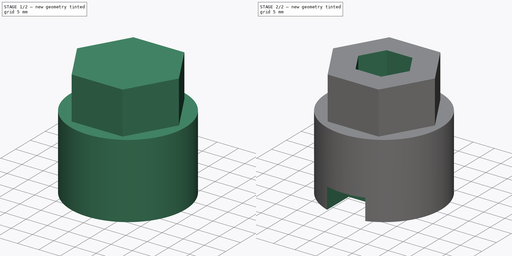
[diagram: build sequence overview — one tinted view per stage of 2, left to right]
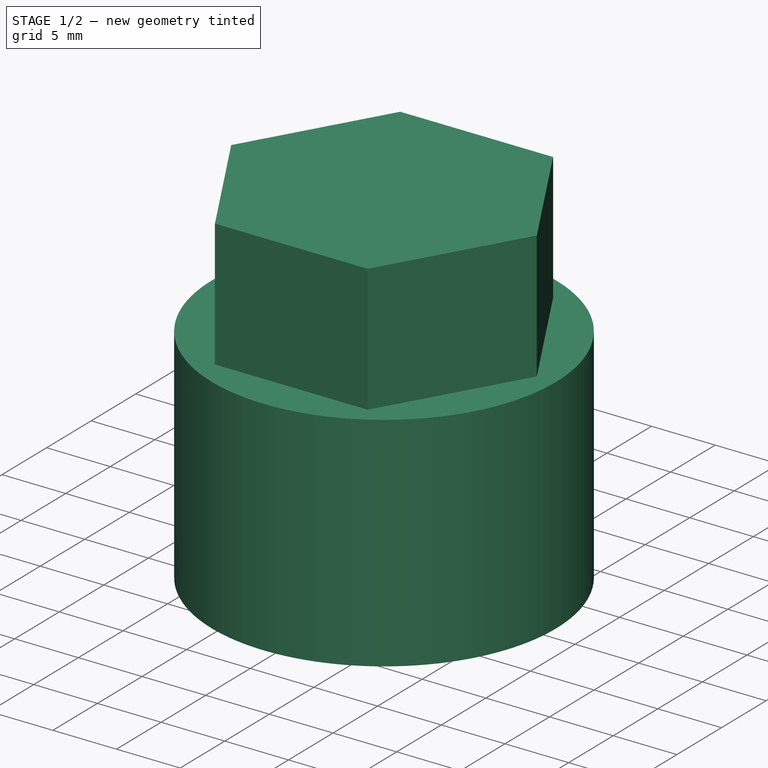
[diagram: stage 1 of 2 — iso view after this stage's code; geometry added in this stage tinted green]
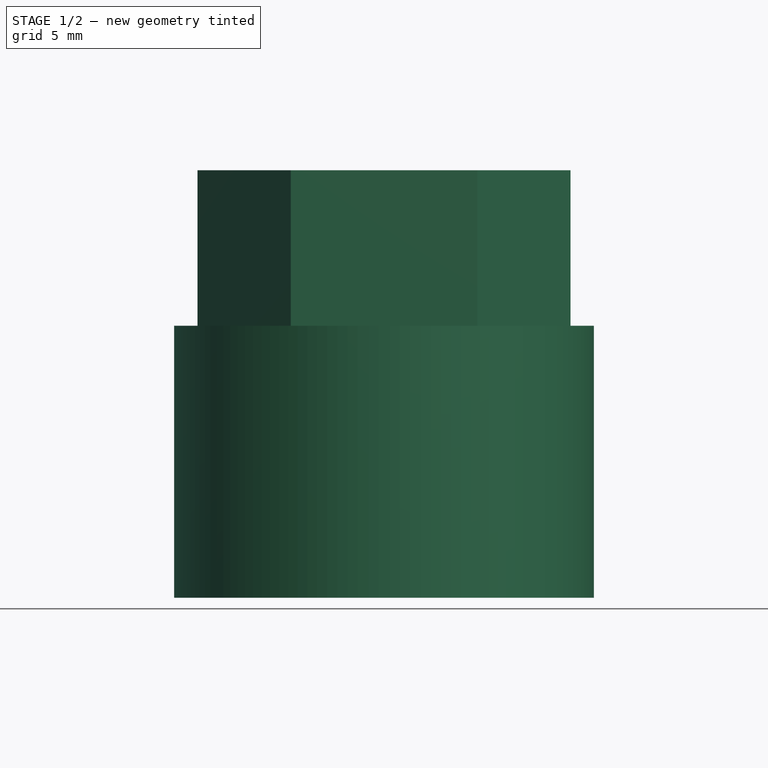
[diagram: stage 1 of 2 — front view after this stage's code; geometry added in this stage tinted green]
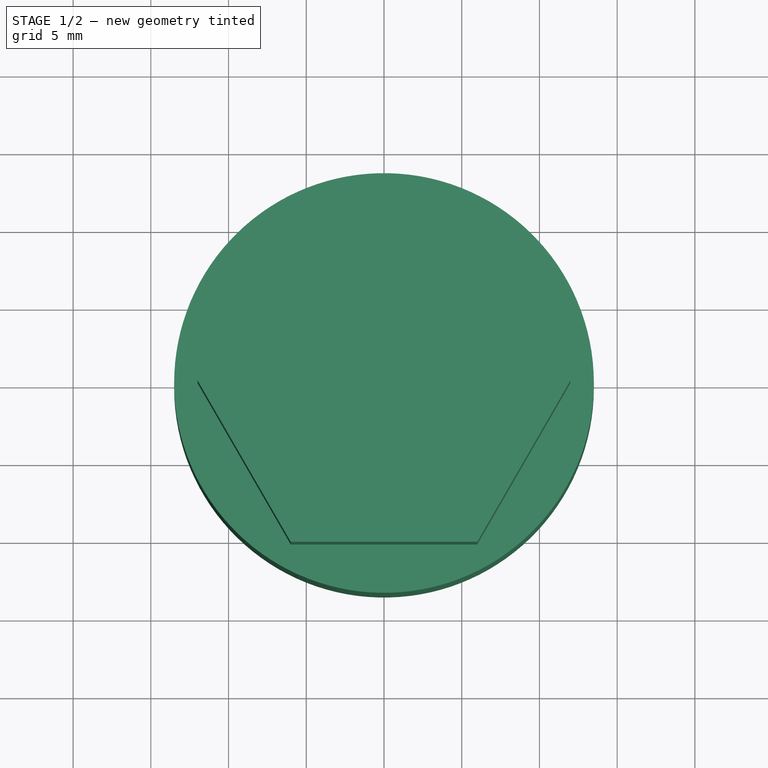
[diagram: stage 1 of 2 — top view after this stage's code; geometry added in this stage tinted green]
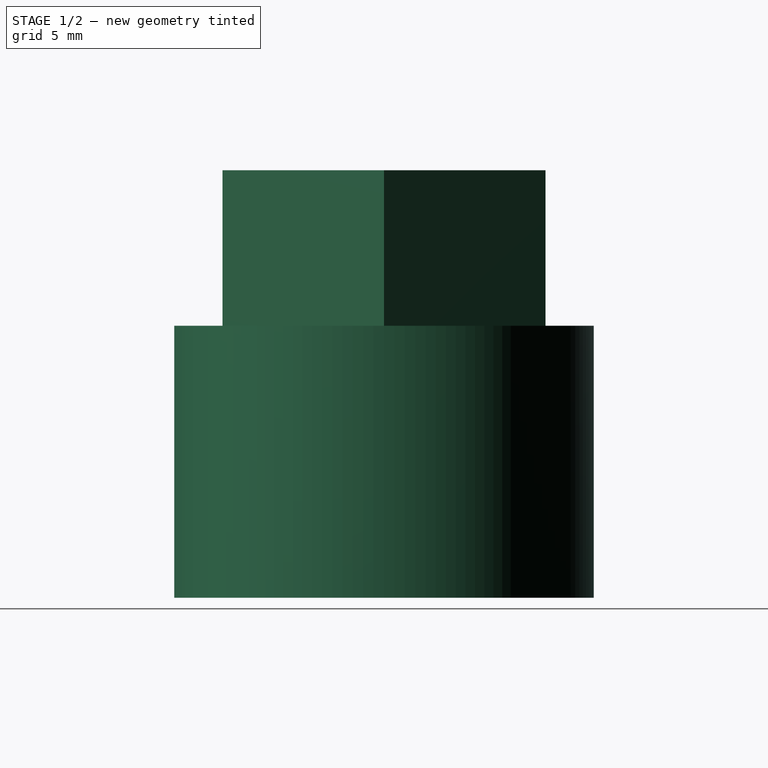
[diagram: stage 1 of 2 — right view after this stage's code; geometry added in this stage tinted green]
FCSTD DOCUMENT  (FreeCAD 1.0R39319 (Git))
Label: Vacume Coupler
License: All rights reserved
LicenseURL: https://en.wikipedia.org/wiki/All_rights_reserved
objects: Sketcher::SketchObject×4, PartDesign::Pad×2, PartDesign::Pocket×2, PartDesign::Body×1
note: 21 computed .brp shape members not serialized (recipe doc carries the construction recipe); baked Part::Feature solids carry a one-line shape summary decoded from their .brp

FEATURE [Sketcher::SketchObject] Sketch
  ArcFitTolerance = 1e-06
  AttachmentSupport = -> [XY_Plane]
  FullyConstrained = true
  MakeInternals = false
  MapMode = 5
  sketch-geometry (1):
    g0: Circle CenterX=0 CenterY=0 CenterZ=0 NormalX=0 NormalY=0 NormalZ=1 AngleXU=0 Radius=13.5
  constraints (2):
    c: Diameter(g0) = 27
    c: Coincident(g0,g-1)
FEATURE [PartDesign::Pad] Pad
  Direction = (0,0,1)
  Length = 17.5
  Length2 = 10
  Profile = -> Sketch
  ReferenceAxis = -> Sketch [N_Axis]
  Refine = true
  Suppressed = false
  Type = 0
FEATURE [Sketcher::SketchObject] Sketch001
  ArcFitTolerance = 1e-06
  AttachmentSupport = -> [Pad]
  FullyConstrained = true
  MakeInternals = false
  MapMode = 5
  Placement = pos=(0,0,17.5) rot=(0,0,1;0rad)
  sketch-geometry (7):
    g0: LineSegment StartX=12 StartY=0 StartZ=0 EndX=6 EndY=10.3923 EndZ=0
    g1: LineSegment StartX=6 StartY=10.3923 StartZ=0 EndX=-6 EndY=10.3923 EndZ=0
    g2: LineSegment StartX=-6 StartY=10.3923 StartZ=0 EndX=-12 EndY=-1.8e-15 EndZ=0
    g3: LineSegment StartX=-12 StartY=-1.8e-15 StartZ=0 EndX=-6 EndY=-10.3923 EndZ=0
    g4: LineSegment StartX=-6 StartY=-10.3923 StartZ=0 EndX=6 EndY=-10.3923 EndZ=0
    g5: LineSegment StartX=6 StartY=-10.3923 StartZ=0 EndX=12 EndY=0 EndZ=0
    g6: Circle [constr] CenterX=0 CenterY=0 CenterZ=0 NormalX=0 NormalY=0 NormalZ=1 AngleXU=0 Radius=12
  constraints (16):
    c: Coincident(g0,g1)
    c: Coincident(g1,g2)
    c: Coincident(g2,g3)
    c: Coincident(g3,g4)
    c: Coincident(g4,g5)
    c: Coincident(g5,g0)
    c: Equal(g0, g1-g5) x5
    c: PointOnObject(g0,g6)
    c: PointOnObject(g1,g6)
    c: PointOnObject(g2,g6)
    c: PointOnObject(g3,g6)
    c: PointOnObject(g4,g6)
    c: PointOnObject(g5,g6)
    c: Radius(g6) = 12
    c: Coincident(g6,g-1)
    c: PointOnObject(g5,g-1)
FEATURE [PartDesign::Pad] Pad001
  BaseFeature = -> Pad
  Direction = (0,0,1)
  Length = 10
  Length2 = 10
  Profile = -> Sketch001
  ReferenceAxis = -> Sketch001 [N_Axis]
  Refine = true
  Suppressed = false
  Type = 0
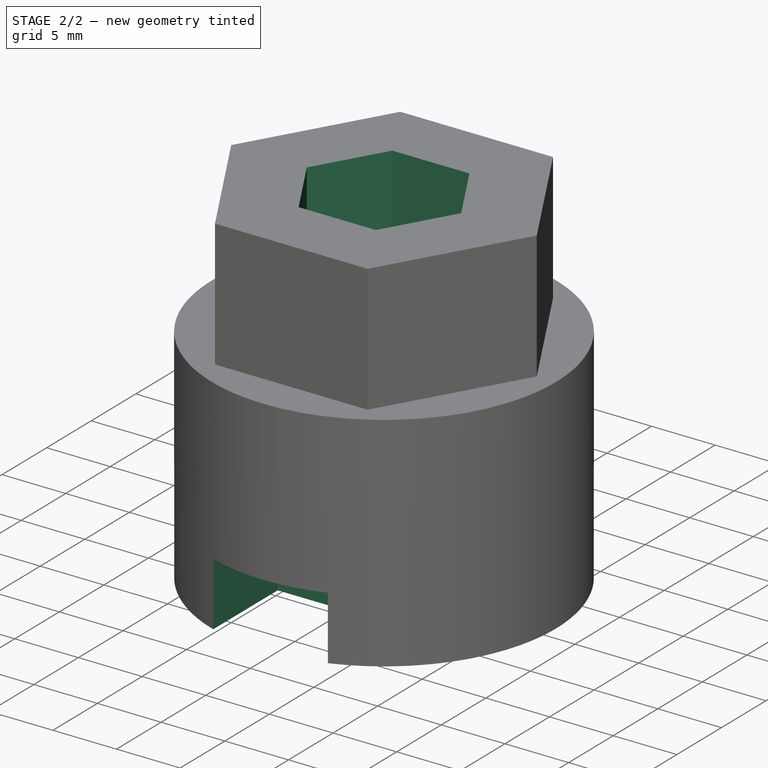
[diagram: stage 2 of 2 — iso view after this stage's code; geometry added in this stage tinted green]
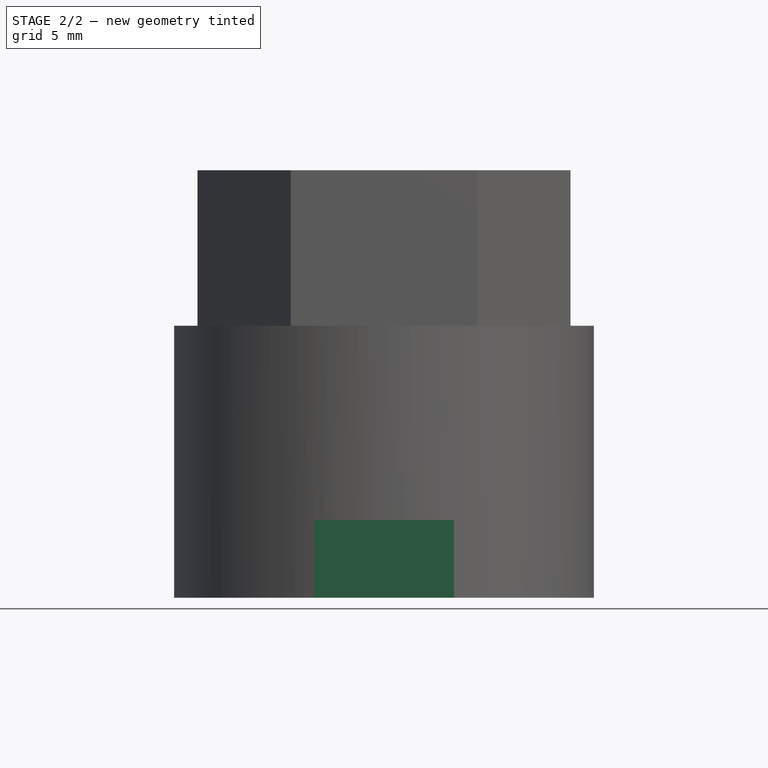
[diagram: stage 2 of 2 — front view after this stage's code; geometry added in this stage tinted green]
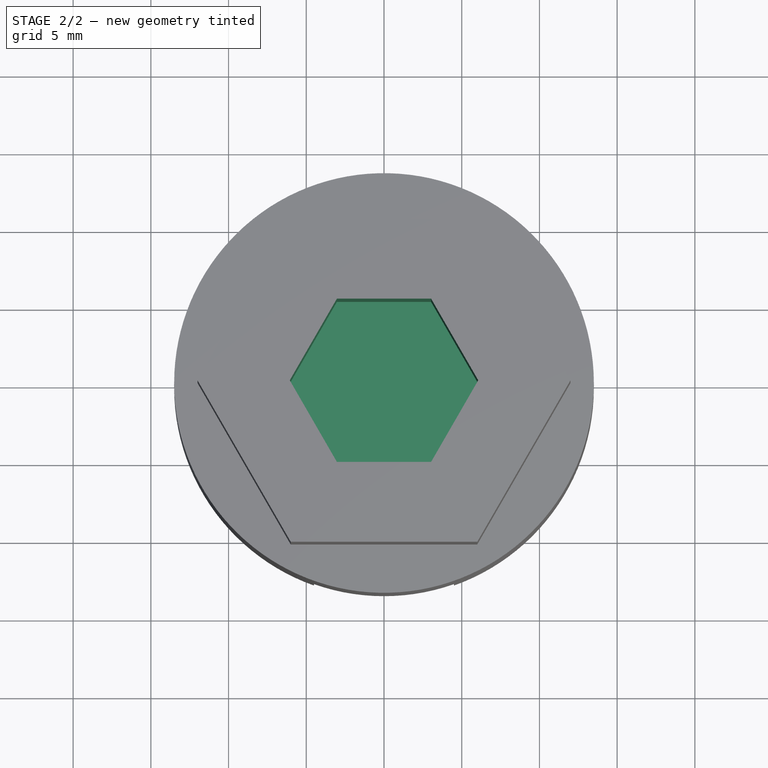
[diagram: stage 2 of 2 — top view after this stage's code; geometry added in this stage tinted green]
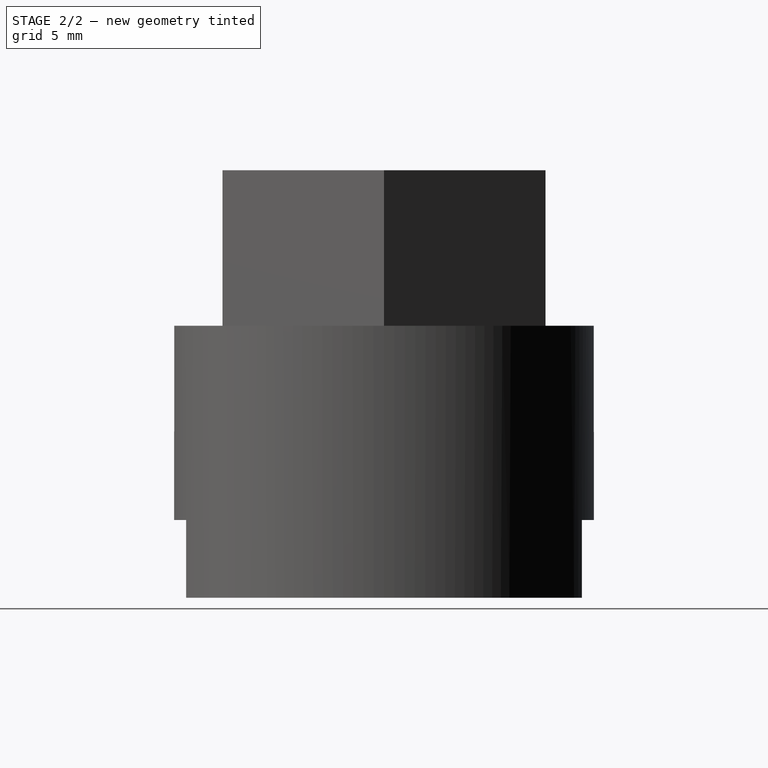
[diagram: stage 2 of 2 — right view after this stage's code; geometry added in this stage tinted green]
FEATURE [Sketcher::SketchObject] Sketch002
  ArcFitTolerance = 1e-06
  AttachmentSupport = -> [Pad001]
  FullyConstrained = true
  MakeInternals = false
  MapMode = 5
  Placement = pos=(0,0,27.5) rot=(0,0,1;0rad)
  sketch-geometry (7):
    g0: LineSegment StartX=6.06218 StartY=0 StartZ=0 EndX=3.03109 EndY=5.25 EndZ=0
    g1: LineSegment StartX=3.03109 StartY=5.25 StartZ=0 EndX=-3.03109 EndY=5.25 EndZ=0
    g2: LineSegment StartX=-3.03109 StartY=5.25 StartZ=0 EndX=-6.06218 EndY=1.80087e-11 EndZ=0
    g3: LineSegment StartX=-6.06218 StartY=1.80087e-11 StartZ=0 EndX=-3.03109 EndY=-5.25 EndZ=0
    g4: LineSegment StartX=-3.03109 StartY=-5.25 StartZ=0 EndX=3.03109 EndY=-5.25 EndZ=0
    g5: LineSegment StartX=3.03109 StartY=-5.25 StartZ=0 EndX=6.06218 EndY=0 EndZ=0
    g6: Circle [constr] CenterX=0 CenterY=0 CenterZ=0 NormalX=0 NormalY=0 NormalZ=1 AngleXU=0 Radius=6.06218
  constraints (16):
    c: Coincident(g0,g1)
    c: Coincident(g1,g2)
    c: Coincident(g2,g3)
    c: Coincident(g3,g4)
    c: Coincident(g4,g5)
    c: Coincident(g5,g0)
    c: Equal(g0, g1-g5) x5
    c: PointOnObject(g0,g6)
    c: PointOnObject(g1,g6)
    c: PointOnObject(g2,g6)
    c: PointOnObject(g3,g6)
    c: PointOnObject(g4,g6)
    c: PointOnObject(g5,g6)
    c: Coincident(g6,g-1)
    c: PointOnObject(g5,g-1)
    c: Distance(g1,g4) = 10.5
FEATURE [PartDesign::Pocket] Pocket
  BaseFeature = -> Pad001
  Direction = (0,0,-1)
  Length = 12
  Length2 = 5
  Profile = -> Sketch002
  ReferenceAxis = -> Sketch002 [N_Axis]
  Refine = true
  Suppressed = false
  Type = 0
FEATURE [Sketcher::SketchObject] Sketch003
  ArcFitTolerance = 1e-06
  AttachmentSupport = -> [Pocket]
  ExternalGeometry = -> [Pocket]
  FullyConstrained = false
  MakeInternals = false
  MapMode = 5
  Placement = pos=(0,0,0) rot=(1,0,0;3.14159rad)
  sketch-geometry (10):
    g0: LineSegment StartX=-4.5 StartY=12.7279 StartZ=0 EndX=-4.5 EndY=5.5 EndZ=0
    g1: LineSegment StartX=-4.5 StartY=5.5 StartZ=0 EndX=4.5 EndY=5.5 EndZ=0
    g2: LineSegment StartX=4.5 StartY=5.5 StartZ=0 EndX=4.5 EndY=12.7279 EndZ=0
    g3: ArcOfCircle CenterX=0 CenterY=0 CenterZ=0 NormalX=0 NormalY=0 NormalZ=1 AngleXU=0 Radius=13.5 StartAngle=1.23096 EndAngle=1.91063
    g4: LineSegment [constr] StartX=-11.4124 StartY=13.5 StartZ=0 EndX=12.5609 EndY=13.5 EndZ=0
    g5: LineSegment StartX=-4.5 StartY=-5.5 StartZ=0 EndX=4.5 EndY=-5.5 EndZ=0
    g6: LineSegment StartX=-4.5 StartY=-12.7279 StartZ=0 EndX=-4.5 EndY=-5.5 EndZ=0
    g7: ArcOfCircle CenterX=1.6e-15 CenterY=0 CenterZ=0 NormalX=0 NormalY=0 NormalZ=1 AngleXU=0 Radius=13.5 StartAngle=4.37255 EndAngle=5.05223
    g8: LineSegment StartX=4.5 StartY=-5.5 StartZ=0 EndX=4.5 EndY=-12.7279 EndZ=0
    g9: LineSegment [constr] StartX=1.7e-15 StartY=5.5 StartZ=0 EndX=1.7e-15 EndY=-5.5 EndZ=0
  constraints (29):
    c: Coincident(g3,g0)
    c: Coincident(g2,g3)
    c: Coincident(g-1,g3)
    c: Coincident(g2,g1)
    c: Coincident(g0,g1)
    c: Horizontal(g1)
    c: Vertical(g0)
    c: Vertical(g2)
    c: PointOnObject(g2,g-3)
    c: Equal(g2,g0)
    c: Horizontal(g4)
    c: Tangent(g4,g-3)
    c: Distance(g2,g0) = 9
    c: Distance(g4,g1) = 8
    c: Coincident(g7,g6)
    c: Coincident(g8,g7)
    c: Coincident(g8,g5)
    c: Coincident(g6,g5)
    c: Horizontal(g5)
    c: Vertical(g6)
    c: Vertical(g8)
    c: Equal(g8,g6)
    c: Symmetric(g1,g1,g9)
    c: Symmetric(g5,g5,g9)
    c: Vertical(g9)
    c: PointOnObject(g7,g-3)
    c: PointOnObject(g7,g-1)
    c: Equal(g5,g1)
    c: Equal(g8,g2)
FEATURE [PartDesign::Pocket] Pocket001
  BaseFeature = -> Pocket
  Direction = (0,0,1)
  Length = 5
  Length2 = 5
  Profile = -> Sketch003
  ReferenceAxis = -> Sketch003 [N_Axis]
  Refine = true
  Suppressed = false
  Type = 0
FEATURE [PartDesign::Body] Body
  AllowCompound = false
  Group = -> [Sketch,Pad,Sketch001,Pad001,Sketch002,Pocket,Sketch003,Pocket001]
  Origin = -> Origin
  Tip = -> Pocket001
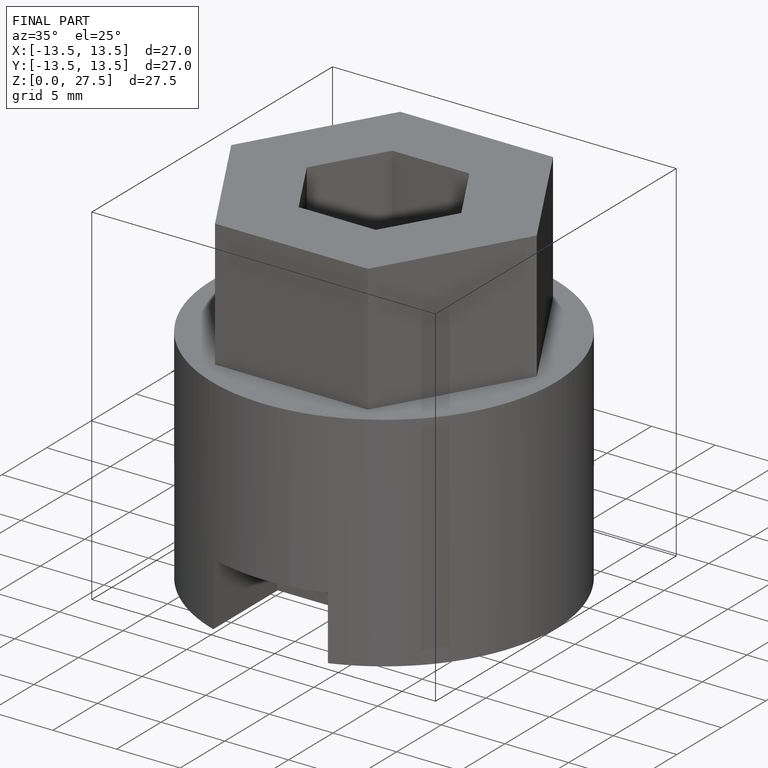
[diagram: finished part — iso view with bounding-box wireframe]
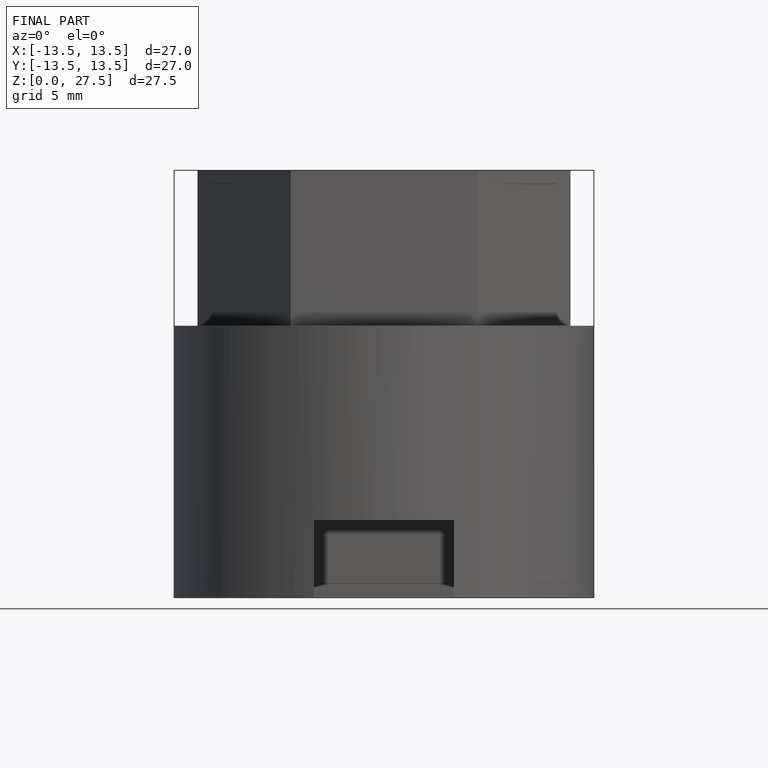
[diagram: finished part — front view with bounding-box wireframe]
